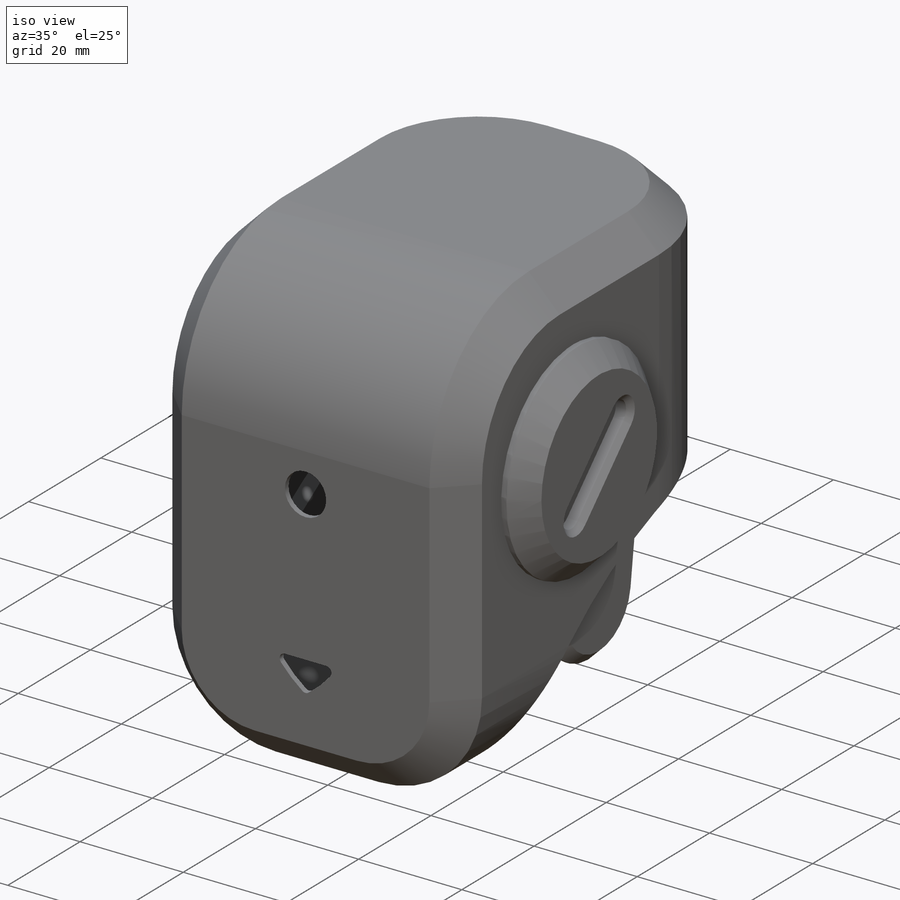
[diagram: iso view]
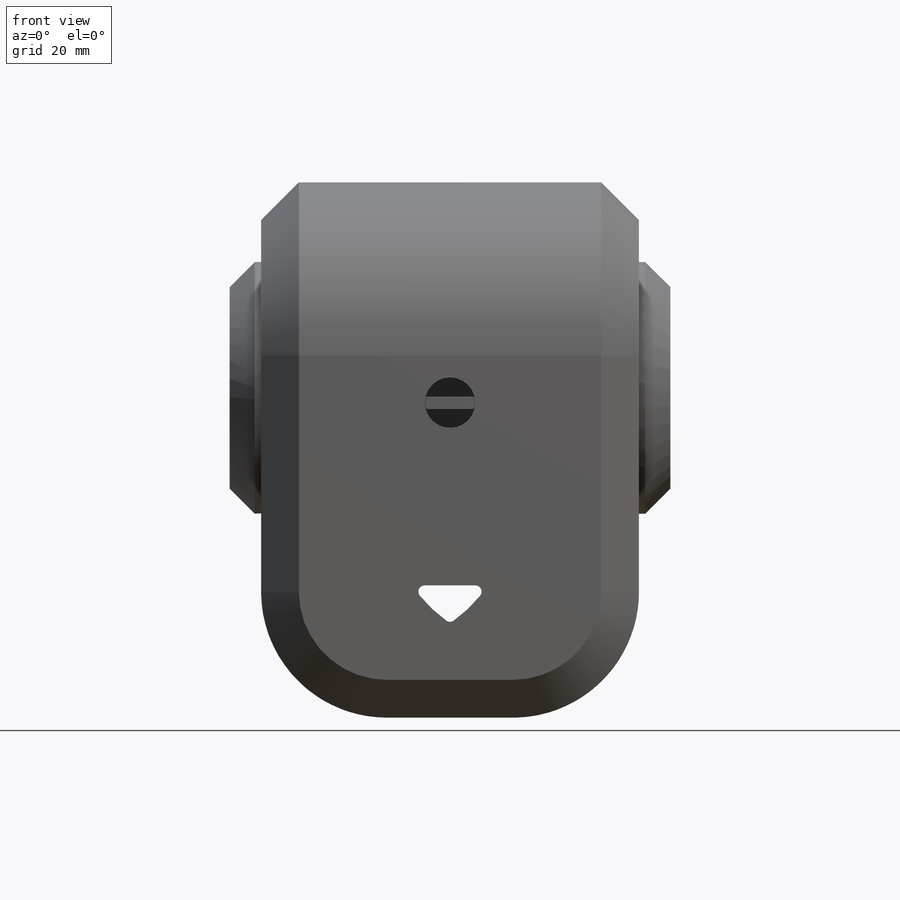
[diagram: front view]
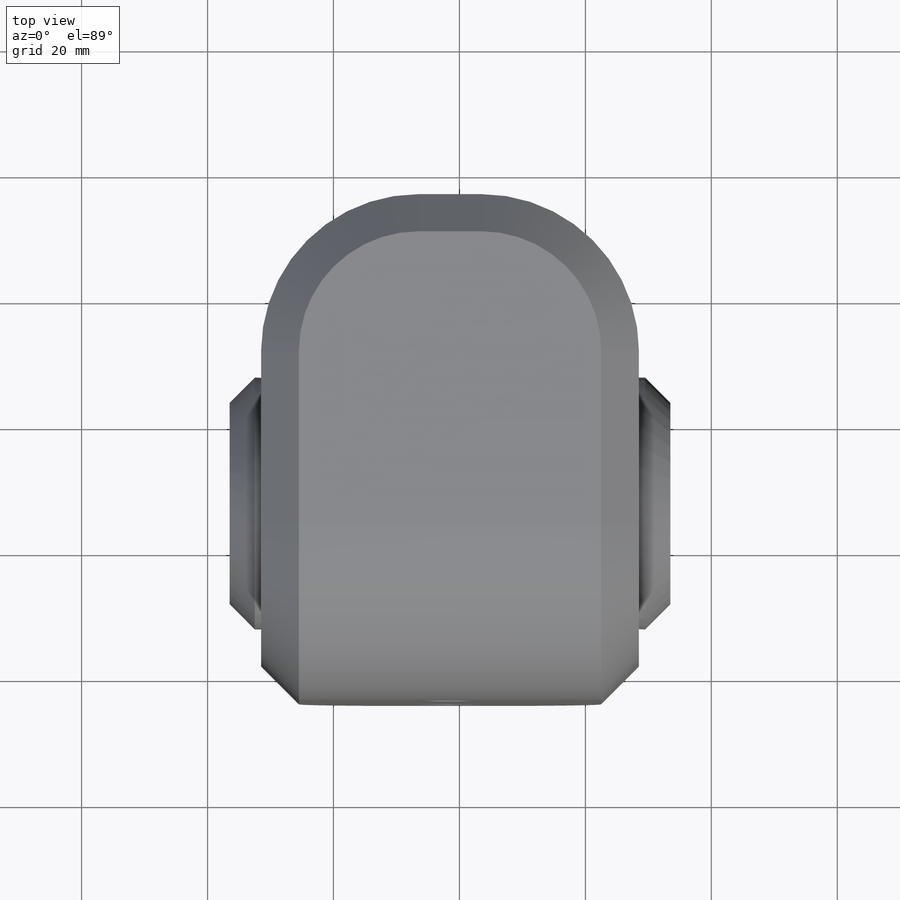
[diagram: top view]
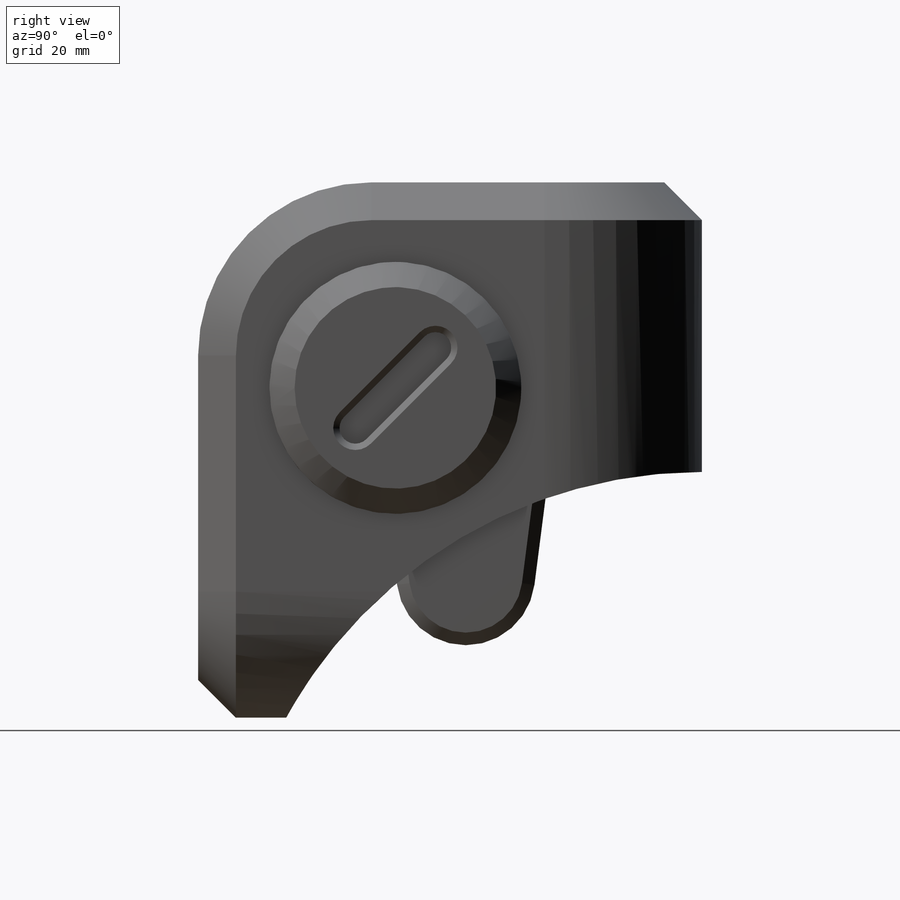
[diagram: right view]
SOLIDWORKS PART (.sldprt)
format: sldprt  version: not decoded by parser v0  size: 1,082,368 bytes
history: native  units: mm
features: sketch x13, thread x12, extrude x6, chamfer x4, cut_extrude x4, fillet x3, material x1, plane x1, shell x1, mirror x1, hole x1 (+11 scaffold rows collapsed)
feature tree (58):
  scaffold x11  (default folders/planes/origin — collapsed)
  material  "Material <not specified>"
  plane  "Plane1"
  sketch  "Sketch1"  dims[c1.D1=35.0mm c1.D8=30.0mm c1.D2=40.0mm c1.D3=6.0mm c1.D4=6.0mm c1.D5=8.0mm c1.D6=40.0mm c1.D7=30.0mm c2.D8=10.0mm c2.D2=85.0mm c2.D7=35.0mm c2.D9=15.0mm c2.D10=80.0mm c2.D11=6.0mm]
  sketch  "Sketch2"
  extrude  "Boss-Extrude1"  Depth=60mm
  fillet  "Fillet1"  Radius=20mm
  fillet  "Fillet2"  Radius=25mm
  chamfer  "Chamfer1"  Distance=6mm
  sketch  "Sketch3"  dims[D1=15.0mm D2=10.0mm]
  extrude  "Boss-Extrude2"  Depth=54mm
  chamfer  "Chamfer2"  Distance=2mm Angle=45deg
  sketch  "Sketch4"
  cut_extrude  "Cut-Extrude1"  [1 undecoded]
  shell  "Shell2"  Thickness=1mm
  sketch  "Sketch5"  dims[D1=8.0mm]
  cut_extrude  "Cut-Extrude2"  [1 undecoded]
  sketch  "Sketch6"  dims[D1=8.0mm D2=35.0mm D3=15.0mm D4=6.0mm D5=12.0mm]
  cut_extrude  "Cut-Extrude3"  [1 undecoded]
  sketch  "Sketch7"  dims[D1=40.0mm]
  extrude  "Boss-Extrude3"  Depth=5mm
  chamfer  "Chamfer3"  Distance=4mm Angle=45deg
  sketch  "Sketch8"  dims[c1.D1=~18.40219mm c2.D1=45.0deg c2.D2=18.0mm c2.D3=5.0mm]
  cut_extrude  "Cut-Extrude4"  Depth=3mm
  chamfer  "Chamfer4"  Distance=1mm Angle=45deg
  mirror  "Mirror1"
  fillet  "Fillet5"  Radius=1mm
  sketch  "Sketch9"
  extrude  "Boss-Extrude4"  Depth=2mm
  sketch  "Sketch10"  dims[D1=0.0mm]
  extrude  "Boss-Extrude5"  [1 undecoded]
  sketch  "Sketch11"  dims[D1=0.0mm]
  extrude  "Boss-Extrude6"  [1 undecoded]
  hole  "M2x0.4 Tapped Hole1"  Diameter=1.6mm Depth=2mm
  sketch  "Sketch13"
  sketch  "Sketch12"  dims[hole-wizard template sketch: 60 standard entries collapsed; hole parameters kept: c18.Thru Tap Drill Depth=2.0mm]
  thread  "Hole Thread1"  Diameter=2mm  [1 undecoded]
  thread  "Hole Thread2"  Diameter=2mm  [1 undecoded]
  thread  "Hole Thread3"  Diameter=2mm  [1 undecoded]
  thread  "Hole Thread4"  Diameter=2mm  [1 undecoded]
  thread  "Hole Thread5"  Diameter=2mm  [1 undecoded]
  thread  "Hole Thread6"  Diameter=2mm  [1 undecoded]
  thread  "Hole Thread7"  Diameter=2mm  [1 undecoded]
  thread  "Hole Thread8"  Diameter=2mm  [1 undecoded]
  thread  "Hole Thread9"  Diameter=2mm  [1 undecoded]
  thread  "Hole Thread10"  Diameter=2mm  [1 undecoded]
  thread  "Hole Thread11"  Diameter=2mm  [1 undecoded]
  thread  "Hole Thread12"  Diameter=2mm  [1 undecoded]
decode coverage: 35 of 45 modeling features carry decoded parameters
note: ~ marks probable driven/reference dimensions
note: 17 parameter values undecoded
summary: no parameter record found for 5 features
note: suppression state not decoded; provenance and decode notes live in map.json
